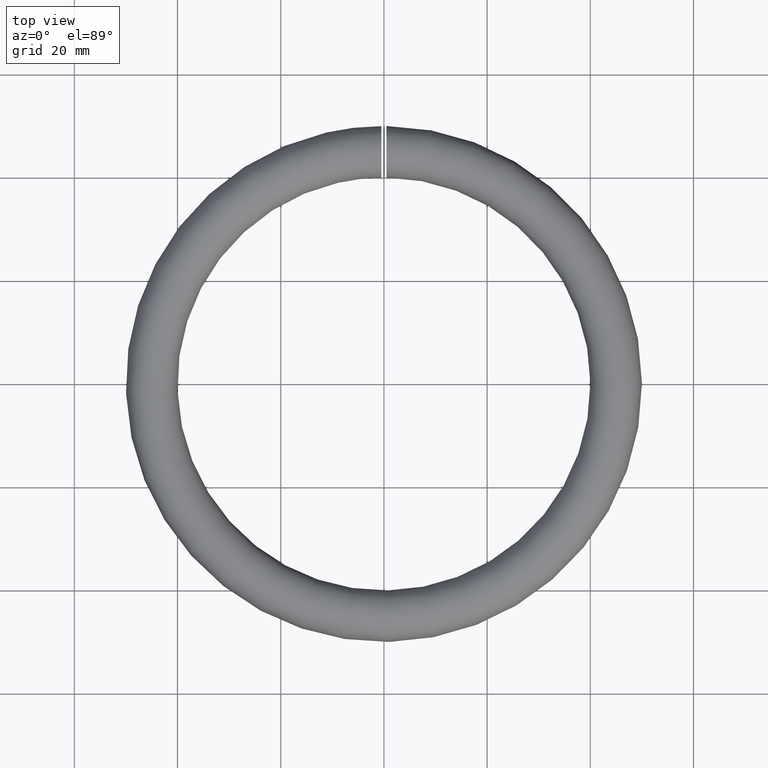
[diagram: clean part render]
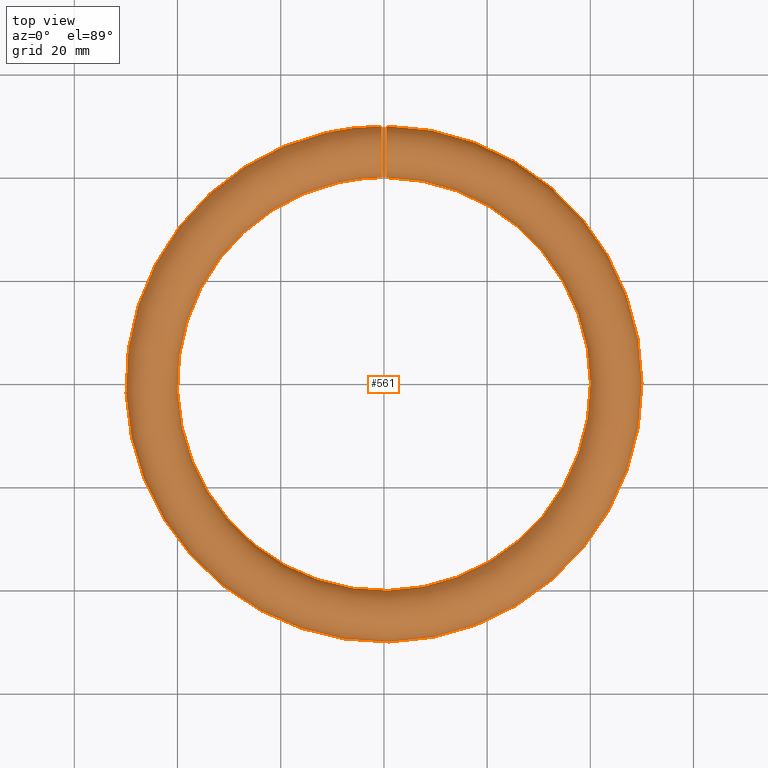
[diagram: same view with one face highlighted and labeled with its STEP entity id]
A machine part, top view. The second image highlights one B-rep face of the part: STEP entity #561.
In plain terms, the highlighted toroidal blend (fillet) surface has major radius 45 mm and minor (blend) radius 5 mm.
Its self-contained STEP definition (entity closure, byte-faithful):
#36 = CARTESIAN_POINT ( 'NONE',  ( -0.4999999999999998900, 40.75523285171067300, 2.667212437035976000 ) ) ;
#69 = CARTESIAN_POINT ( 'NONE',  ( -0.5000000000000001100, 50.00455112582350400, -0.1889847515756455100 ) ) ;
#107 = VERTEX_POINT ( 'NONE', #11070 ) ;
#118 = CARTESIAN_POINT ( 'NONE',  ( 0.4999999999999998900, 48.63556605732446800, -3.445408839641718400 ) ) ;
#149 = CARTESIAN_POINT ( 'NONE',  ( -0.4999999999999998900, 41.55345370120549800, -3.640174583035549200 ) ) ;
#187 = CARTESIAN_POINT ( 'NONE',  ( -0.5000000000000001100, 49.24085051534654400, -2.664731407631112200 ) ) ;
#226 = CARTESIAN_POINT ( 'NONE',  ( -0.5000000000000001100, 45.18448721183265300, 5.007377775751354700 ) ) ;
#323 = CARTESIAN_POINT ( 'NONE',  ( 0.4999999999999998900, 39.99011962930949000, 0.1974066450409419400 ) ) ;
#356 = CARTESIAN_POINT ( 'NONE',  ( 0.4999999999999997800, 40.03258885555202100, -0.6186871934442143000 ) ) ;
#435 = CARTESIAN_POINT ( 'NONE',  ( 0.5000000000000001100, 40.95088540516108800, 2.942148117096686100 ) ) ;
#511 = ORIENTED_EDGE ( 'NONE', *, *, #3474, .T. ) ;
#542 = ORIENTED_EDGE ( 'NONE', *, *, #8189, .T. ) ;
#561 = ADVANCED_FACE ( 'NONE', ( #8276, #874 ), #9863, .T. ) ;
#799 = CARTESIAN_POINT ( 'NONE',  ( -0.4999999999999998900, 40.30544132023990000, -1.736997304236421700 ) ) ;
#874 = FACE_OUTER_BOUND ( 'NONE', #10847, .T. ) ;
#880 = CARTESIAN_POINT ( 'NONE',  ( -0.4999999999999998900, 40.31692786047513300, 1.790517444190102400 ) ) ;
#917 = CARTESIAN_POINT ( 'NONE',  ( -0.5000000000000001100, 43.88327929422231200, 4.885340644618875800 ) ) ;
#995 = CARTESIAN_POINT ( 'NONE',  ( -0.5000000000000003300, 49.05478148649608300, -2.940115620705987100 ) ) ;
#1003 = CARTESIAN_POINT ( 'NONE',  ( 0.5000000000000004400, 41.55213154497664600, -3.638550980490396800 ) ) ;
#1040 = CARTESIAN_POINT ( 'NONE',  ( -0.5000000000000001100, 49.69635417090943700, 1.739735316464360700 ) ) ;
#1122 = CARTESIAN_POINT ( 'NONE',  ( -0.5000000000000000000, 46.73886998554893800, -4.689763228535274400 ) ) ;
#1135 = CARTESIAN_POINT ( 'NONE',  ( 0.5000000000000000000, 43.20474437036571700, -4.679123280144899900 ) ) ;
#1172 = CARTESIAN_POINT ( 'NONE',  ( 0.5000000000000002200, 41.11416881527812700, -3.150227640116662000 ) ) ;
#1331 = CARTESIAN_POINT ( 'NONE',  ( 0.5000000000000001100, 40.72522944383240400, -2.619427987752971400 ) ) ;
#1435 = CARTESIAN_POINT ( 'NONE',  ( 0.0000000000000000000, 0.0000000000000000000, 0.0000000000000000000 ) ) ;
#1620 = EDGE_LOOP ( 'NONE', ( #511 ) ) ;
#1826 = CARTESIAN_POINT ( 'NONE',  ( -0.5000000000000001100, 40.93944554626961700, 2.940228123739370600 ) ) ;
#1986 = CARTESIAN_POINT ( 'NONE',  ( -0.5000000000000000000, 49.57164158652945200, 2.045714143593077200 ) ) ;
#1997 = CARTESIAN_POINT ( 'NONE',  ( 0.5000000000000003300, 49.23584873703087800, -2.672703096292079900 ) ) ;
#2042 = CARTESIAN_POINT ( 'NONE',  ( 0.5000000000000002200, 49.93595239080132600, -0.8488574751463324700 ) ) ;
#2071 = CARTESIAN_POINT ( 'NONE',  ( -0.5000000000000002200, 43.83912236963088600, -4.875111827890383300 ) ) ;
#2081 = CARTESIAN_POINT ( 'NONE',  ( 0.5000000000000002200, 42.05863482089230800, -4.048799291201316200 ) ) ;
#2105 = CARTESIAN_POINT ( 'NONE',  ( -0.5000000000000000000, 47.04223784754872600, -4.565661010147123600 ) ) ;
#2117 = CARTESIAN_POINT ( 'NONE',  ( 0.5000000000000000000, 40.11769345547799800, -1.104693101831275300 ) ) ;
#2156 = CARTESIAN_POINT ( 'NONE',  ( 0.5000000000000000000, 46.16377093123322300, 4.873168829817598400 ) ) ;
#2199 = CARTESIAN_POINT ( 'NONE',  ( 0.4999999999999998900, 45.84431711306050500, 4.938499484728851900 ) ) ;
#2683 = CARTESIAN_POINT ( 'NONE',  ( -0.5000000000000003300, 40.44508607444727500, 2.094503745983736600 ) ) ;
#2717 = AXIS2_PLACEMENT_3D ( 'NONE', #1435, #5073, #6139 ) ;
#2724 = CARTESIAN_POINT ( 'NONE',  ( -0.5000000000000000000, 41.11416881527809900, -3.150227640116661100 ) ) ;
#2760 = CARTESIAN_POINT ( 'NONE',  ( -0.5000000000000001100, 43.25548369860772600, 4.698297714353892700 ) ) ;
#2801 = CARTESIAN_POINT ( 'NONE',  ( -0.5000000000000001100, 40.05766821514640000, 0.8429662326882120200 ) ) ;
#2846 = CARTESIAN_POINT ( 'NONE',  ( 0.4999999999999997800, 47.89210006412773200, -4.089863044526246900 ) ) ;
#2878 = CARTESIAN_POINT ( 'NONE',  ( -0.5000000000000000000, 48.63879553441201900, -3.441897883333191900 ) ) ;
#2934 = CARTESIAN_POINT ( 'NONE',  ( 0.4999999999999997800, 49.86996381398035500, -1.168416251952200800 ) ) ;
#2961 = CARTESIAN_POINT ( 'NONE',  ( -0.5000000000000000000, 50.00645900001970300, 0.1370739750451253600 ) ) ;
#2970 = CARTESIAN_POINT ( 'NONE',  ( 0.5000000000000000000, 49.96142098510162600, 0.6212838452133367900 ) ) ;
#3002 = CARTESIAN_POINT ( 'NONE',  ( -0.4999999999999998900, 44.15837947561237100, -4.939936942194360200 ) ) ;
#3037 = CARTESIAN_POINT ( 'NONE',  ( -0.4999999999999998900, 47.08416891068892300, 4.546653656250824400 ) ) ;
#3051 = CARTESIAN_POINT ( 'NONE',  ( 0.4999999999999998900, 47.66813760159281800, 4.239467785523391500 ) ) ;
#3091 = CARTESIAN_POINT ( 'NONE',  ( 0.5000000000000000000, 41.59461082482923900, 3.678650280733874600 ) ) ;
#3204 = CARTESIAN_POINT ( 'NONE',  ( 0.4999999999999998900, 48.44702369043442000, 3.634300847219524000 ) ) ;
#3474 = EDGE_CURVE ( 'NONE', #5948, #5948, #4470, .T. ) ;
#3670 = CARTESIAN_POINT ( 'NONE',  ( -0.5000000000000000000, 40.11048684145135500, -1.109296044688008000 ) ) ;
#3833 = CARTESIAN_POINT ( 'NONE',  ( 0.4999999999999998900, 41.92807919756246800, -3.950713681952858500 ) ) ;
#3861 = CARTESIAN_POINT ( 'NONE',  ( -0.4999999999999997800, 42.91051543203652600, -4.546764198540572900 ) ) ;
#3868 = CARTESIAN_POINT ( 'NONE',  ( 0.4999999999999997800, 43.82896965408711800, -4.872588368482281500 ) ) ;
#3902 = CARTESIAN_POINT ( 'NONE',  ( -0.5000000000000000000, 41.11416881527809900, -3.150227640116661100 ) ) ;
#3915 = CARTESIAN_POINT ( 'NONE',  ( 0.5000000000000001100, 50.00628598208155800, 0.1347649182536145900 ) ) ;
#3945 = CARTESIAN_POINT ( 'NONE',  ( -0.5000000000000002200, 45.84099787443960100, 4.939334474790076300 ) ) ;
#3957 = CARTESIAN_POINT ( 'NONE',  ( 0.5000000000000000000, 42.33046441242355200, -4.232761165886825200 ) ) ;
#3982 = CARTESIAN_POINT ( 'NONE',  ( -0.5000000000000002200, 47.23373313054870700, 4.474985420501216300 ) ) ;
#3990 = CARTESIAN_POINT ( 'NONE',  ( 0.5000000000000001100, 40.15634532502178200, -1.263198413182099700 ) ) ;
#4066 = CARTESIAN_POINT ( 'NONE',  ( 0.5000000000000002200, 40.76690218945836400, 2.670896319409729700 ) ) ;
#4106 = CARTESIAN_POINT ( 'NONE',  ( 0.5000000000000001100, 48.67583258214448000, 3.402329220572884800 ) ) ;
#4137 = CARTESIAN_POINT ( 'NONE',  ( 0.5000000000000000000, 43.89205758605080400, 4.887319813527319900 ) ) ;
#4470 = B_SPLINE_CURVE_WITH_KNOTS ( 'NONE', 3,
 ( #9362, #10265, #1003, #3833, #2081, #3957, #7476, #11361, #1135, #3868, #6678, #11238, #10306, #4759, #9448, #11272, #11315, #5714, #2846, #10423, #118, #7550, #1997, #8472, #5838, #2934, #2042, #8510, #3915, #2970, #6757, #8390, #5043, #7747, #9603, #11509, #10618, #4106, #3204, #10466, #3051, #7709, #7786, #2156, #2199, #5085, #9639, #8591, #4137, #5007, #6032, #5915, #8628, #3091, #9526, #9675, #435, #4066, #4928, #9562, #8666, #11545, #8742, #323, #6910, #356, #5952, #2117, #3990, #6875, #7669, #1331, #6835, #1172 ),
 .UNSPECIFIED., .T., .F.,
 ( 4, 2, 2, 2, 2, 2, 2, 2, 2, 2, 2, 2, 2, 2, 2, 2, 2, 2, 2, 2, 2, 2, 2, 2, 2, 2, 2, 2, 2, 2, 2, 2, 2, 2, 2, 2, 4 ),
 ( 0.0000000000000000000, 0.0009769375680375043900, 0.001465406352056248600, 0.001953875136074992700, 0.002930812704112481100, 0.003907750272149969000, 0.004884687840187457300, 0.005861625408224946500, 0.006838562976262434900, 0.007815500544299924100, 0.008792438112337411600, 0.009769375680374900800, 0.01074631324841239000, 0.01172325081644987900, 0.01270018838448736700, 0.01318865716850611100, 0.01367712595252485400, 0.01465406352056234300, 0.01563100108859983100, 0.01660793865663732000, 0.01758487622467480600, 0.01856181379271229500, 0.01953875136074978100, 0.02051568892878727000, 0.02149262649682475600, 0.02246956406486224500, 0.02344650163289973100, 0.02442343920093721600, 0.02491190798495597100, 0.02540037676897472000, 0.02637731433701223300, 0.02735425190504974300, 0.02833118947308725700, 0.02881965825710601200, 0.02930812704112476700, 0.03028506460916228400, 0.03126200217719979400 ),
 .UNSPECIFIED. ) ;
#4592 = CARTESIAN_POINT ( 'NONE',  ( -0.5000000000000002200, 40.04880365821257700, -0.7895083424887473500 ) ) ;
#4759 = CARTESIAN_POINT ( 'NONE',  ( 0.5000000000000000000, 45.78463168968597300, -4.948548807481560500 ) ) ;
#4790 = CARTESIAN_POINT ( 'NONE',  ( -0.5000000000000000000, 49.88233122482925800, 1.115535455000401500 ) ) ;
#4834 = CARTESIAN_POINT ( 'NONE',  ( -0.5000000000000001100, 49.26465193744193300, 2.626596861436254500 ) ) ;
#4873 = CARTESIAN_POINT ( 'NONE',  ( -0.5000000000000001100, 42.06160096606466700, -4.061045827103264100 ) ) ;
#4914 = CARTESIAN_POINT ( 'NONE',  ( -0.5000000000000000000, 48.43916328664880000, 3.641574693920573300 ) ) ;
#4928 = CARTESIAN_POINT ( 'NONE',  ( 0.5000000000000000000, 40.68069468668223700, 2.529241757396254500 ) ) ;
#5007 = CARTESIAN_POINT ( 'NONE',  ( 0.4999999999999998900, 43.26431698367067500, 4.701548062083810800 ) ) ;
#5043 = CARTESIAN_POINT ( 'NONE',  ( 0.5000000000000002200, 49.83731151976764600, 1.266110863969922100 ) ) ;
#5073 = DIRECTION ( 'NONE',  ( -0.0000000000000000000, -0.0000000000000000000, -1.000000000000000000 ) ) ;
#5085 = CARTESIAN_POINT ( 'NONE',  ( 0.5000000000000001100, 45.19590184435147500, 5.006674660376911700 ) ) ;
#5623 = CARTESIAN_POINT ( 'NONE',  ( -0.5000000000000001100, 40.12275388829231600, 1.162298581497871500 ) ) ;
#5703 = CARTESIAN_POINT ( 'NONE',  ( -0.5000000000000002200, 42.33358392870087500, -4.244056759111084700 ) ) ;
#5714 = CARTESIAN_POINT ( 'NONE',  ( 0.4999999999999997800, 47.62014278686186900, -4.269584539487226500 ) ) ;
#5743 = CARTESIAN_POINT ( 'NONE',  ( -0.5000000000000000000, 47.19002773414860000, -4.496519277414254400 ) ) ;
#5782 = CARTESIAN_POINT ( 'NONE',  ( -0.5000000000000002200, 49.55205681529729100, -2.088767715529960900 ) ) ;
#5823 = CARTESIAN_POINT ( 'NONE',  ( -0.4999999999999998900, 49.67810806117037000, -1.788504493564594800 ) ) ;
#5838 = CARTESIAN_POINT ( 'NONE',  ( 0.5000000000000002200, 49.67711048299538800, -1.790881711880365700 ) ) ;
#5915 = CARTESIAN_POINT ( 'NONE',  ( 0.4999999999999998900, 42.37970479956968700, 4.272668645301431300 ) ) ;
#5948 = VERTEX_POINT ( 'NONE', #9999 ) ;
#5952 = CARTESIAN_POINT ( 'NONE',  ( 0.5000000000000000000, 40.05582965892405400, -0.7828644395920979500 ) ) ;
#6032 = CARTESIAN_POINT ( 'NONE',  ( 0.5000000000000000000, 42.95647965244943800, 4.576254486534518900 ) ) ;
#6139 = DIRECTION ( 'NONE',  ( -1.000000000000000000, 0.0000000000000000000, 0.0000000000000000000 ) ) ;
#6394 = CARTESIAN_POINT ( 'NONE',  ( -0.5000000000000001100, 40.72654710868738400, -2.621057897433015900 ) ) ;
#6512 = CARTESIAN_POINT ( 'NONE',  ( -0.5000000000000001100, 42.95397961082450400, 4.575211948076363600 ) ) ;
#6590 = CARTESIAN_POINT ( 'NONE',  ( -0.4999999999999997800, 47.89563463247492300, -4.087649157378633500 ) ) ;
#6666 = CARTESIAN_POINT ( 'NONE',  ( -0.5000000000000000000, 45.79086548002506200, -4.947400947427106600 ) ) ;
#6678 = CARTESIAN_POINT ( 'NONE',  ( 0.4999999999999998900, 44.15511781040271400, -4.939366194170189800 ) ) ;
#6709 = CARTESIAN_POINT ( 'NONE',  ( -0.5000000000000000000, 48.40729917197283800, -3.671703343567974900 ) ) ;
#6747 = CARTESIAN_POINT ( 'NONE',  ( -0.5000000000000000000, 47.62193634958914100, -4.268224786890566900 ) ) ;
#6757 = CARTESIAN_POINT ( 'NONE',  ( 0.4999999999999998900, 49.93854584072566600, 0.7828985665763709100 ) ) ;
#6835 = CARTESIAN_POINT ( 'NONE',  ( 0.5000000000000002200, 40.90603361446433400, -2.893711026388581700 ) ) ;
#6875 = CARTESIAN_POINT ( 'NONE',  ( 0.5000000000000000000, 40.29503091799382700, -1.731621447568409300 ) ) ;
#6910 = CARTESIAN_POINT ( 'NONE',  ( 0.5000000000000001100, 39.98775509511155900, -0.1283552740988926600 ) ) ;
#7307 = CARTESIAN_POINT ( 'NONE',  ( -0.5000000000000001100, 42.09796397720271000, 4.086775870709284500 ) ) ;
#7423 = CARTESIAN_POINT ( 'NONE',  ( -0.5000000000000000000, 41.35976299154457100, 3.446581812154505100 ) ) ;
#7464 = CARTESIAN_POINT ( 'NONE',  ( -0.5000000000000002200, 40.25045557410898300, -1.580560018682908700 ) ) ;
#7476 = CARTESIAN_POINT ( 'NONE',  ( 0.5000000000000000000, 42.47221595115917800, -4.318799408242614200 ) ) ;
#7501 = CARTESIAN_POINT ( 'NONE',  ( -0.5000000000000001100, 46.78174737266721900, 4.673621750106547300 ) ) ;
#7550 = CARTESIAN_POINT ( 'NONE',  ( 0.4999999999999998900, 49.05324421433944300, -2.942350180368423600 ) ) ;
#7584 = B_SPLINE_CURVE_WITH_KNOTS ( 'NONE', 3,
 ( #2724, #12011, #6394, #9192, #11149, #799, #7464, #3670, #4592, #11078, #11978, #2801, #5623, #880, #2683, #36, #1826, #7423, #8304, #7307, #9153, #6512, #2760, #917, #11227, #10338, #226, #3945, #9514, #8541, #7501, #3037, #3982, #10454, #10374, #4914, #11304, #11384, #4834, #1986, #1040, #4790, #8421, #2961, #69, #7654, #11265, #5823, #5782, #187, #995, #2878, #6709, #6590, #6747, #5743, #2105, #1122, #9439, #7618, #6666, #9354, #8459, #3002, #2071, #9391, #9475, #3861, #10412, #5703, #4873, #149, #11347, #3902 ),
 .UNSPECIFIED., .T., .F.,
 ( 4, 2, 2, 2, 2, 2, 2, 2, 2, 2, 2, 2, 2, 2, 2, 2, 2, 2, 2, 2, 2, 2, 2, 2, 2, 2, 2, 2, 2, 2, 2, 2, 2, 2, 2, 2, 4 ),
 ( 0.0000000000000000000, 0.0009769388480439995000, 0.001465408272066004800, 0.001953877696088010300, 0.002930816544132020000, 0.003907755392176030100, 0.004884694240220040200, 0.005861633088264049500, 0.006838571936308059600, 0.007815510784352068900, 0.008792449632396079000, 0.009769388480440089100, 0.01074632732848409900, 0.01172326617652810800, 0.01270020502457211800, 0.01318867444859412300, 0.01367714387261612800, 0.01465408272066015400, 0.01563102156870417900, 0.01660796041674820300, 0.01758489926479223400, 0.01856183811283625800, 0.01953877696088028900, 0.02051571580892431300, 0.02149265465696834400, 0.02246959350501236800, 0.02344653235305638900, 0.02442347120110042000, 0.02491194062512242300, 0.02540041004914442300, 0.02637734889718843300, 0.02735428774523243600, 0.02833122659327644300, 0.02881969601729845700, 0.02930816544132047000, 0.03028510428936448400, 0.03126204313740849100 ),
 .UNSPECIFIED. ) ;
#7618 = CARTESIAN_POINT ( 'NONE',  ( -0.5000000000000000000, 46.11068805017151100, -4.885493264959585200 ) ) ;
#7654 = CARTESIAN_POINT ( 'NONE',  ( -0.5000000000000000000, 49.93761971974684100, -0.8375322249438260600 ) ) ;
#7669 = CARTESIAN_POINT ( 'NONE',  ( 0.5000000000000001100, 40.41807408623290600, -2.035465604662694000 ) ) ;
#7709 = CARTESIAN_POINT ( 'NONE',  ( 0.5000000000000000000, 47.09565184168866400, 4.550072222739419900 ) ) ;
#7747 = CARTESIAN_POINT ( 'NONE',  ( 0.5000000000000000000, 49.69726472289806900, 1.737708722552717200 ) ) ;
#7786 = CARTESIAN_POINT ( 'NONE',  ( 0.5000000000000001100, 46.79287594272496200, 4.678082633919745900 ) ) ;
#8189 = EDGE_CURVE ( 'NONE', #107, #107, #7584, .T. ) ;
#8276 = FACE_OUTER_BOUND ( 'NONE', #1620, .T. ) ;
#8304 = CARTESIAN_POINT ( 'NONE',  ( -0.5000000000000001100, 41.59169890110188600, 3.675634106824543900 ) ) ;
#8390 = CARTESIAN_POINT ( 'NONE',  ( 0.5000000000000000000, 49.87662242578566200, 1.104988040697780800 ) ) ;
#8421 = CARTESIAN_POINT ( 'NONE',  ( -0.5000000000000001100, 49.94520484527210200, 0.7928719451836526700 ) ) ;
#8459 = CARTESIAN_POINT ( 'NONE',  ( -0.5000000000000001100, 44.80778729101346900, -5.007061470198074500 ) ) ;
#8472 = CARTESIAN_POINT ( 'NONE',  ( 0.5000000000000000000, 49.54829854267881500, -2.096973054910204100 ) ) ;
#8510 = CARTESIAN_POINT ( 'NONE',  ( 0.5000000000000000000, 50.00468206296920900, -0.1924391803790074200 ) ) ;
#8541 = CARTESIAN_POINT ( 'NONE',  ( -0.4999999999999998900, 46.62831386771637200, 4.729310502549378000 ) ) ;
#8591 = CARTESIAN_POINT ( 'NONE',  ( 0.4999999999999998900, 44.21185630376366800, 4.948763333721435800 ) ) ;
#8628 = CARTESIAN_POINT ( 'NONE',  ( 0.5000000000000000000, 42.10710763922631400, 4.093534615991088400 ) ) ;
#8666 = CARTESIAN_POINT ( 'NONE',  ( 0.5000000000000000000, 40.31933246772369000, 1.796368527333110300 ) ) ;
#8742 = CARTESIAN_POINT ( 'NONE',  ( 0.5000000000000002200, 40.05829333039531500, 0.8467155325454845900 ) ) ;
#9153 = CARTESIAN_POINT ( 'NONE',  ( -0.5000000000000001100, 42.37562031727934200, 4.270242285699863400 ) ) ;
#9192 = CARTESIAN_POINT ( 'NONE',  ( -0.5000000000000002200, 40.49853456622145800, -2.188861957357633300 ) ) ;
#9354 = CARTESIAN_POINT ( 'NONE',  ( -0.5000000000000001100, 45.14080069164024400, -5.008588327256190600 ) ) ;
#9362 = CARTESIAN_POINT ( 'NONE',  ( 0.5000000000000002200, 41.11416881527812700, -3.150227640116662000 ) ) ;
#9391 = CARTESIAN_POINT ( 'NONE',  ( -0.5000000000000001100, 43.36854476255921000, -4.730188671214098600 ) ) ;
#9439 = CARTESIAN_POINT ( 'NONE',  ( -0.4999999999999998900, 46.58248233859941900, -4.744910449099286600 ) ) ;
#9448 = CARTESIAN_POINT ( 'NONE',  ( 0.4999999999999997800, 46.10852090747610500, -4.885816085181343900 ) ) ;
#9475 = CARTESIAN_POINT ( 'NONE',  ( -0.4999999999999998900, 43.21268290686549600, -4.673614766781019700 ) ) ;
#9514 = CARTESIAN_POINT ( 'NONE',  ( -0.5000000000000001100, 46.16148277776395800, 4.873473564250717000 ) ) ;
#9526 = CARTESIAN_POINT ( 'NONE',  ( 0.5000000000000002200, 41.36145948773572200, 3.448053021494443400 ) ) ;
#9562 = CARTESIAN_POINT ( 'NONE',  ( 0.5000000000000000000, 40.44584824710745600, 2.096558095668601900 ) ) ;
#9603 = CARTESIAN_POINT ( 'NONE',  ( 0.5000000000000002200, 49.57434968535158500, 2.039343159175520400 ) ) ;
#9639 = CARTESIAN_POINT ( 'NONE',  ( 0.5000000000000001100, 44.86328590533509000, 5.008896488112891500 ) ) ;
#9675 = CARTESIAN_POINT ( 'NONE',  ( 0.5000000000000000000, 41.04901351814758200, 3.072502942577708400 ) ) ;
#9863 = TOROIDAL_SURFACE ( 'NONE', #2717, 45.00000000000000700, 5.000000000000000000 ) ;
#9999 = CARTESIAN_POINT ( 'NONE',  ( 0.5000000000000000000, 41.11416881527809900, -3.150227640116660200 ) ) ;
#10265 = CARTESIAN_POINT ( 'NONE',  ( 0.5000000000000002200, 41.32230401609192000, -3.406744253844741400 ) ) ;
#10306 = CARTESIAN_POINT ( 'NONE',  ( 0.4999999999999998900, 45.12988947756039000, -5.009039352427263800 ) ) ;
#10338 = CARTESIAN_POINT ( 'NONE',  ( -0.4999999999999997800, 44.85818468776776100, 5.008674470869082500 ) ) ;
#10374 = CARTESIAN_POINT ( 'NONE',  ( -0.5000000000000002200, 47.93618099726640500, 4.058347963588578200 ) ) ;
#10412 = CARTESIAN_POINT ( 'NONE',  ( -0.5000000000000002200, 42.76337774638356800, -4.476282086392208400 ) ) ;
#10423 = CARTESIAN_POINT ( 'NONE',  ( 0.4999999999999998900, 48.39879221304524700, -3.679262838979443300 ) ) ;
#10454 = CARTESIAN_POINT ( 'NONE',  ( -0.5000000000000000000, 47.66634557660048400, 4.240773634958848100 ) ) ;
#10466 = CARTESIAN_POINT ( 'NONE',  ( 0.5000000000000000000, 47.94185929060637400, 4.054383485464064100 ) ) ;
#10618 = CARTESIAN_POINT ( 'NONE',  ( 0.4999999999999998900, 49.08684854445685600, 2.895396903270440500 ) ) ;
#10847 = EDGE_LOOP ( 'NONE', ( #542 ) ) ;
#11070 = CARTESIAN_POINT ( 'NONE',  ( -0.5000000000000000000, 41.11416881527809900, -3.150227640116660200 ) ) ;
#11078 = CARTESIAN_POINT ( 'NONE',  ( -0.4999999999999997800, 39.98813141863684700, -0.1388096505406756800 ) ) ;
#11149 = CARTESIAN_POINT ( 'NONE',  ( -0.5000000000000001100, 40.42945101399503500, -2.040898516841788400 ) ) ;
#11227 = CARTESIAN_POINT ( 'NONE',  ( -0.5000000000000001100, 44.20933838952705500, 4.948279092983973700 ) ) ;
#11238 = CARTESIAN_POINT ( 'NONE',  ( 0.4999999999999998900, 44.80400050917090500, -5.006901148078146200 ) ) ;
#11265 = CARTESIAN_POINT ( 'NONE',  ( -0.5000000000000001100, 49.87123284005220100, -1.163467701340472600 ) ) ;
#11272 = CARTESIAN_POINT ( 'NONE',  ( 0.4999999999999998900, 46.73286959863043000, -4.700417121625807000 ) ) ;
#11304 = CARTESIAN_POINT ( 'NONE',  ( -0.5000000000000001100, 48.67342745399685100, 3.404927278741506600 ) ) ;
#11315 = CARTESIAN_POINT ( 'NONE',  ( 0.5000000000000000000, 47.03798426900029000, -4.576466319403240700 ) ) ;
#11347 = CARTESIAN_POINT ( 'NONE',  ( -0.4999999999999998900, 41.32230395866143600, -3.406744183064437200 ) ) ;
#11361 = CARTESIAN_POINT ( 'NONE',  ( 0.4999999999999998900, 42.90452954524437200, -4.552868052338721000 ) ) ;
#11384 = CARTESIAN_POINT ( 'NONE',  ( -0.5000000000000000000, 49.08479852152665000, 2.898289698973108400 ) ) ;
#11509 = CARTESIAN_POINT ( 'NONE',  ( 0.5000000000000000000, 49.27015318470507300, 2.617401060657764700 ) ) ;
#11545 = CARTESIAN_POINT ( 'NONE',  ( 0.4999999999999997800, 40.12544782223121600, 1.172892817734448900 ) ) ;
#11978 = CARTESIAN_POINT ( 'NONE',  ( -0.5000000000000001100, 39.99000637798577900, 0.1940993909432564000 ) ) ;
#12011 = CARTESIAN_POINT ( 'NONE',  ( -0.5000000000000001100, 40.90603367189477500, -2.893711097168886900 ) ) ;